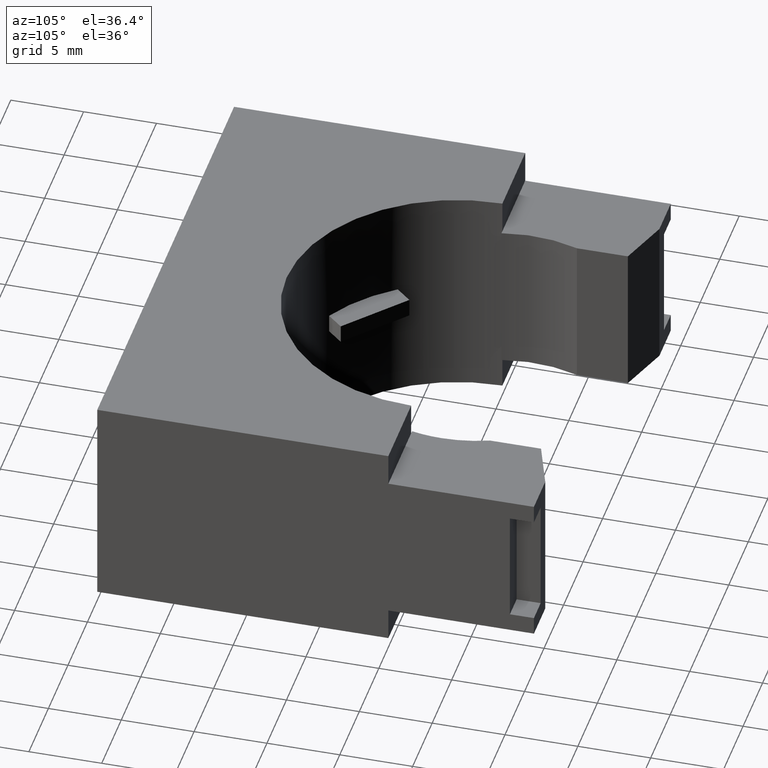
[diagram: clean part render]
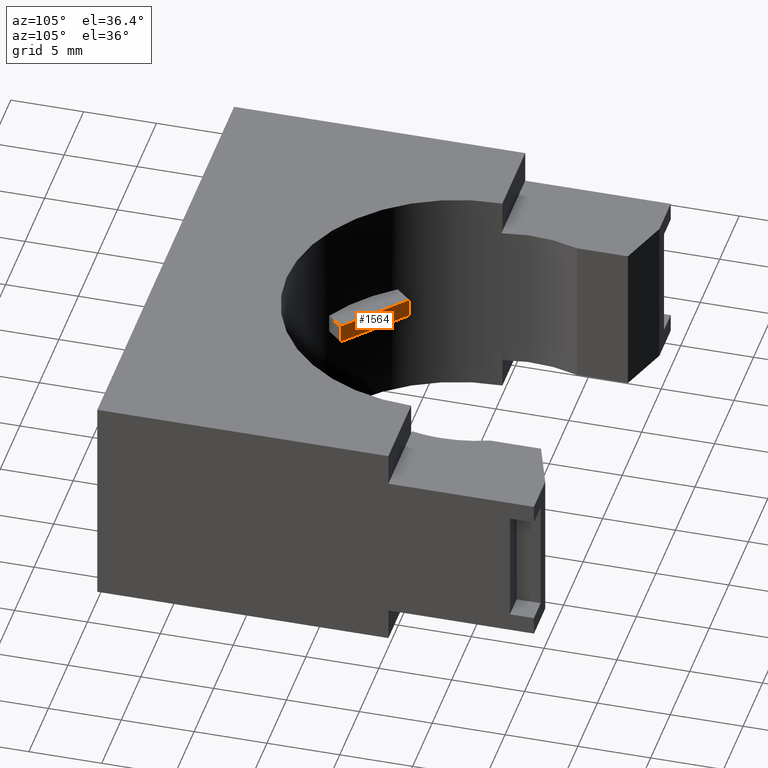
[diagram: same view with one face highlighted and labeled with its STEP entity id]
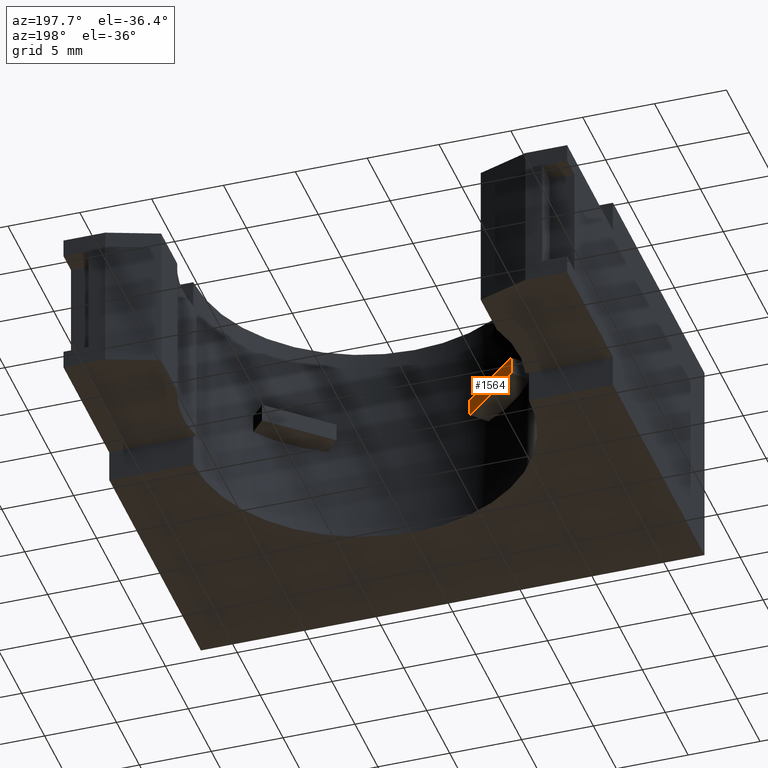
[diagram: same view with one face highlighted and labeled with its STEP entity id]
A machine part, auxiliary view. The second image highlights one B-rep face of the part: STEP entity #1564.
A second angle (auxiliary view) of the same face is appended — the face is thin or edge-on in the first view.
In plain terms, the highlighted planar face has unit normal (-0.6691, -0.7431, -0).
Its self-contained STEP definition (entity closure, byte-faithful):
#267 = CARTESIAN_POINT ( 'NONE',  ( -0.3415804530440579900, -0.02297467803830899000, 0.2700000000000000700 ) ) ;
#268 = DIRECTION ( 'NONE',  ( -0.0000000000000000000, -8.326672684688672800E-017, 1.000000000000000000 ) ) ;
#269 = VECTOR ( 'NONE', #268, 39.37007874015748100 ) ;
#270 = CARTESIAN_POINT ( 'NONE',  ( -0.3415804530440579900, -0.02297467803830899000, 0.2700000000000000700 ) ) ;
#271 = LINE ( 'NONE', #270, #269 ) ;
#276 = CARTESIAN_POINT ( 'NONE',  ( -0.3415804530440579900, -0.02297467803830899300, 0.3200000000000000600 ) ) ;
#283 = DIRECTION ( 'NONE',  ( -0.0000000000000000000, -8.326672684688672800E-017, 1.000000000000000000 ) ) ;
#284 = VECTOR ( 'NONE', #283, 39.37007874015748100 ) ;
#285 = CARTESIAN_POINT ( 'NONE',  ( -0.1827332465982723100, -0.1660013451475233200, 0.2700000000000000700 ) ) ;
#286 = LINE ( 'NONE', #285, #284 ) ;
#353 = CARTESIAN_POINT ( 'NONE',  ( -0.1827332465982723100, -0.1660013451475233200, 0.2700000000000000700 ) ) ;
#406 = DIRECTION ( 'NONE',  ( 0.7431448254773592700, -0.6691306063588968700, -0.0000000000000000000 ) ) ;
#407 = VECTOR ( 'NONE', #406, 39.37007874015748900 ) ;
#408 = CARTESIAN_POINT ( 'NONE',  ( -0.1827332465982723100, -0.1660013451475233200, 0.2700000000000000700 ) ) ;
#409 = LINE ( 'NONE', #408, #407 ) ;
#758 = DIRECTION ( 'NONE',  ( 0.7431448254773592700, -0.6691306063588969800, 0.0000000000000000000 ) ) ;
#759 = DIRECTION ( 'NONE',  ( -0.6691306063588969800, -0.7431448254773592700, -6.187923719070059000E-017 ) ) ;
#760 = CARTESIAN_POINT ( 'NONE',  ( -0.1827332465982723100, -0.1660013451475233200, 0.2700000000000000700 ) ) ;
#761 = AXIS2_PLACEMENT_3D ( 'NONE', #760, #759, #758 ) ;
#762 = FACE_OUTER_BOUND ( 'NONE', #1565, .T. ) ;
#768 = PLANE ( 'NONE',  #761 ) ;
#817 = DIRECTION ( 'NONE',  ( 0.7431448254773592700, -0.6691306063588968700, -0.0000000000000000000 ) ) ;
#818 = VECTOR ( 'NONE', #817, 39.37007874015748900 ) ;
#819 = CARTESIAN_POINT ( 'NONE',  ( -0.1827332465982723100, -0.1660013451475233200, 0.3200000000000000600 ) ) ;
#820 = LINE ( 'NONE', #819, #818 ) ;
#850 = CARTESIAN_POINT ( 'NONE',  ( -0.1827332465982723100, -0.1660013451475233200, 0.3200000000000000600 ) ) ;
#1458 = VERTEX_POINT ( 'NONE', #353 ) ;
#1461 = EDGE_CURVE ( 'NONE', #1458, #1581, #286, .T. ) ;
#1465 = VERTEX_POINT ( 'NONE', #276 ) ;
#1468 = EDGE_CURVE ( 'NONE', #1469, #1465, #271, .T. ) ;
#1469 = VERTEX_POINT ( 'NONE', #267 ) ;
#1480 = ORIENTED_EDGE ( 'NONE', *, *, #1461, .F. ) ;
#1481 = ORIENTED_EDGE ( 'NONE', *, *, #1482, .F. ) ;
#1482 = EDGE_CURVE ( 'NONE', #1469, #1458, #409, .T. ) ;
#1561 = ORIENTED_EDGE ( 'NONE', *, *, #1468, .T. ) ;
#1564 = ADVANCED_FACE ( 'NONE', ( #762 ), #768, .F. ) ;
#1565 = EDGE_LOOP ( 'NONE', ( #1566, #1480, #1481, #1561 ) ) ;
#1566 = ORIENTED_EDGE ( 'NONE', *, *, #1567, .T. ) ;
#1567 = EDGE_CURVE ( 'NONE', #1465, #1581, #820, .T. ) ;
#1581 = VERTEX_POINT ( 'NONE', #850 ) ;